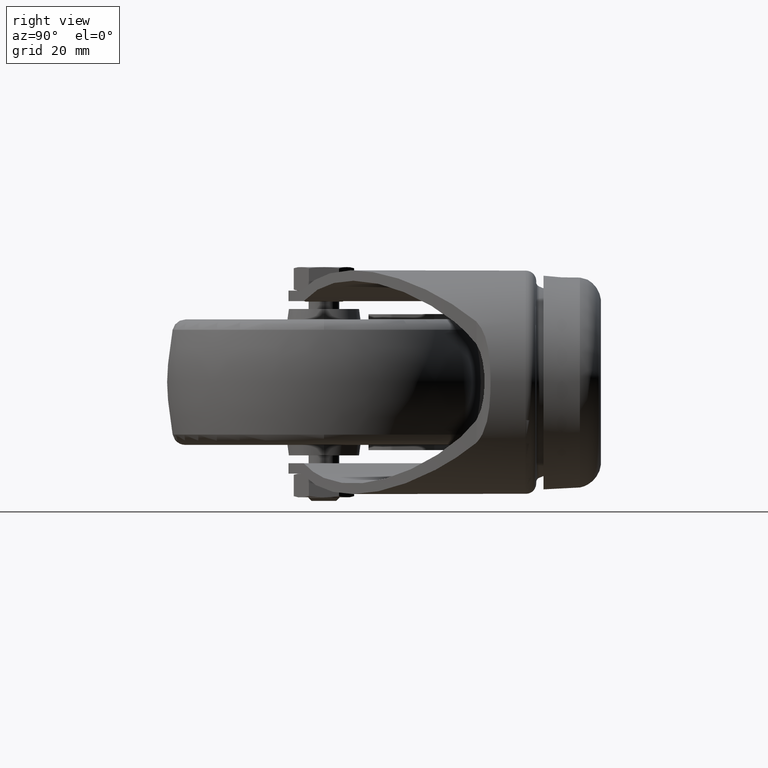
[diagram: clean part render]
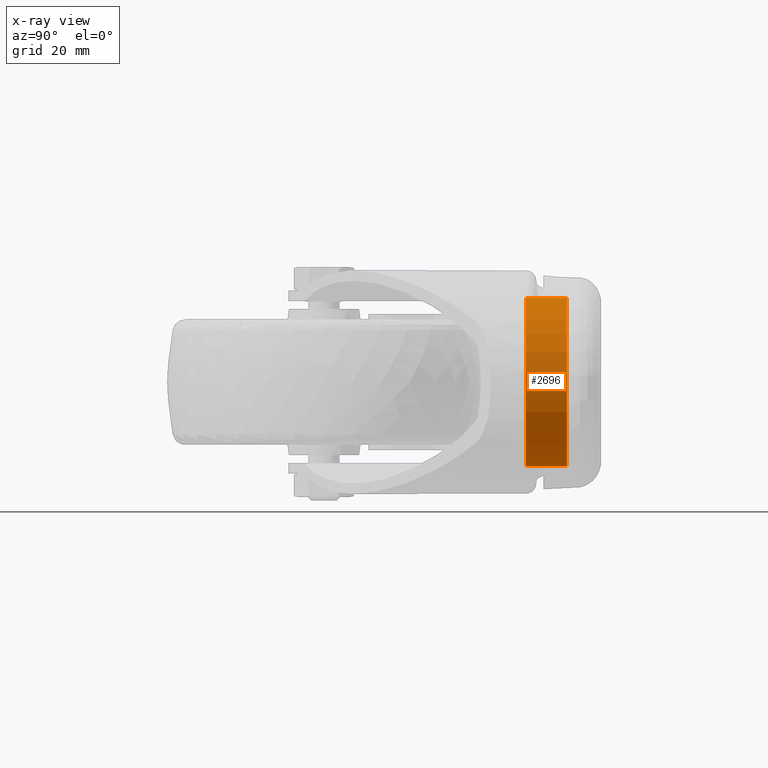
[diagram: x-ray — body ghosted, one internal face saturated and labeled with its STEP entity id]
A machine part, right view, then the same camera in x-ray: the body is ghosted and one INTERNAL B-rep face — a face not visible from any outside direction — is saturated and labeled: STEP entity #2696.
In plain terms, the highlighted cylindrical surface (bore or boss wall) has radius 16.1 mm, axis along (0, 1, 0).
Its self-contained STEP definition (entity closure, byte-faithful):
#459=CYLINDRICAL_SURFACE('',#2924,16.1);
#536=FACE_BOUND('',#841,.T.);
#624=FACE_OUTER_BOUND('',#840,.T.);
#840=EDGE_LOOP('',(#1902));
#841=EDGE_LOOP('',(#1903));
#1084=CIRCLE('',#2923,16.1);
#1085=CIRCLE('',#2925,16.1);
#1244=VERTEX_POINT('',#4253);
#1245=VERTEX_POINT('',#4256);
#1505=EDGE_CURVE('',#1244,#1244,#1084,.T.);
#1506=EDGE_CURVE('',#1245,#1245,#1085,.T.);
#1902=ORIENTED_EDGE('',*,*,#1505,.T.);
#1903=ORIENTED_EDGE('',*,*,#1506,.F.);
#2696=ADVANCED_FACE('',(#624,#536),#459,.F.);
#2923=AXIS2_PLACEMENT_3D('',#4254,#3351,#3352);
#2924=AXIS2_PLACEMENT_3D('',#4255,#3353,#3354);
#2925=AXIS2_PLACEMENT_3D('',#4257,#3355,#3356);
#3351=DIRECTION('center_axis',(0.,-1.,0.));
#3352=DIRECTION('ref_axis',(0.,0.,-1.));
#3353=DIRECTION('center_axis',(0.,1.,0.));
#3354=DIRECTION('ref_axis',(0.,0.,-1.));
#3355=DIRECTION('center_axis',(0.,-1.,0.));
#3356=DIRECTION('ref_axis',(0.,0.,-1.));
#4253=CARTESIAN_POINT('',(18.,38.62,-16.1));
#4254=CARTESIAN_POINT('Origin',(18.,38.62,0.));
#4255=CARTESIAN_POINT('Origin',(18.,-7.5,0.));
#4256=CARTESIAN_POINT('',(18.,46.4655,-16.1));
#4257=CARTESIAN_POINT('Origin',(18.,46.4655,0.));